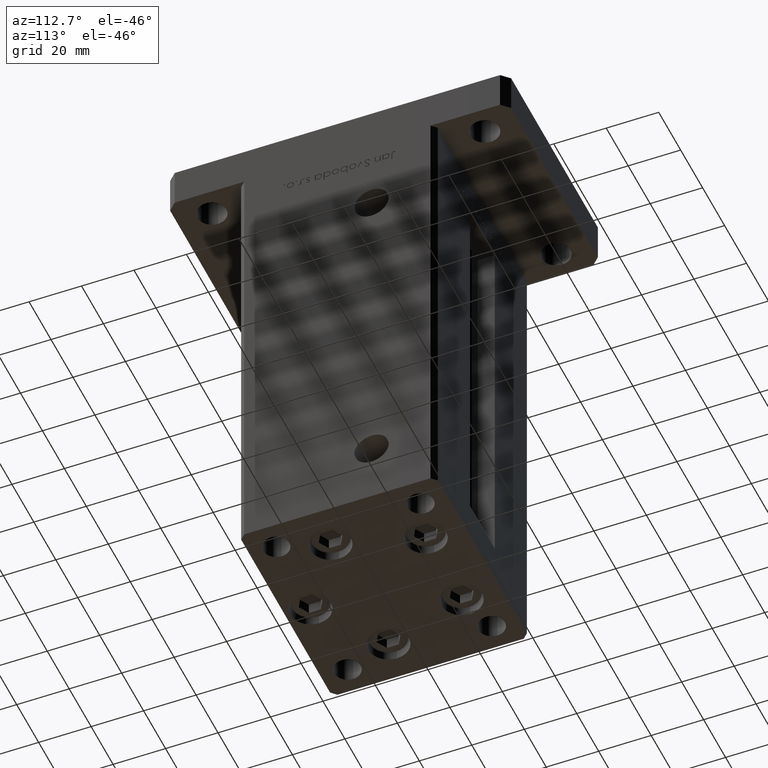
[diagram: clean part render]
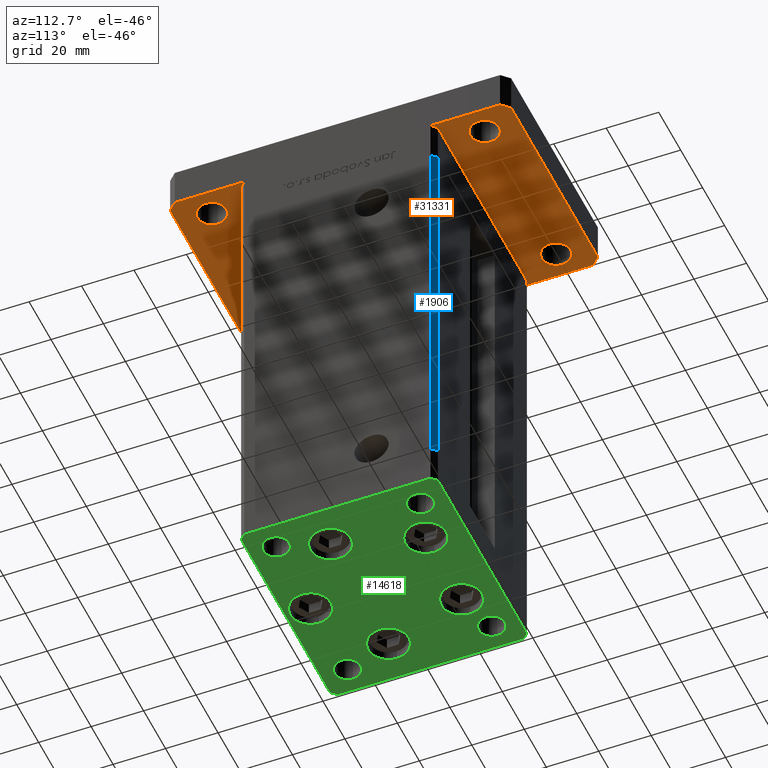
[diagram: same view with three faces highlighted in distinct colors, each labeled with its STEP entity id]
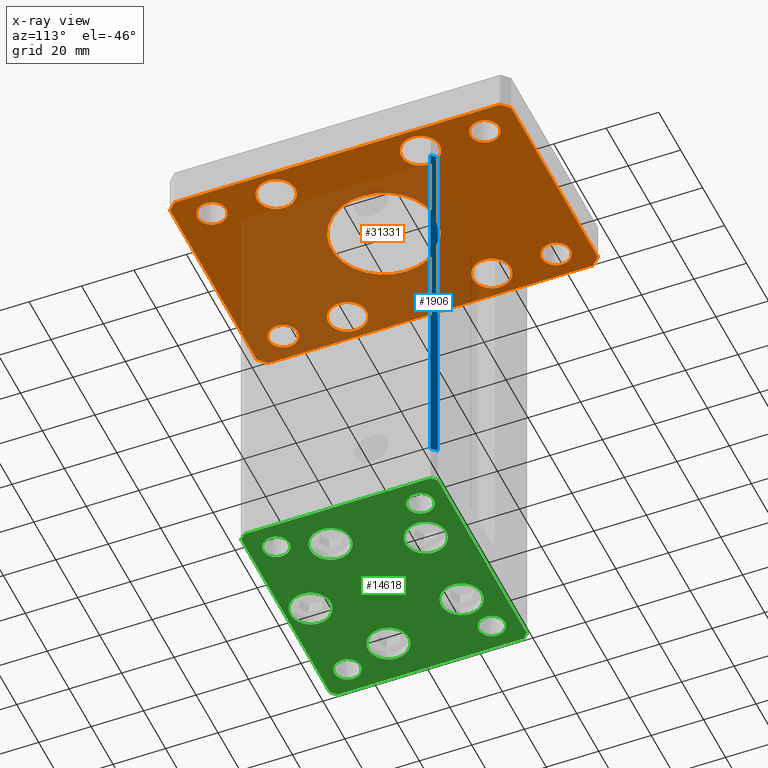
[diagram: x-ray of the same camera — body ghosted, the three highlighted faces saturated]
A machine part, auxiliary view with three faces highlighted in distinct colors.
The next image is the same camera in x-ray (body ghosted, the three faces saturated) — at least one of them is partly hidden behind the body in this view.
Their STEP definitions:

[orange] entity #31331 — the highlighted planar face has unit normal (0, 0, 1).
#93 = CIRCLE ( 'NONE', #39924, 5.499999999999998224 ) ;
#198 = DIRECTION ( 'NONE',  ( 0.000000000000000000, 0.000000000000000000, -1.000000000000000000 ) ) ;
#218 = CARTESIAN_POINT ( 'NONE',  ( 39.50000000000001421, -64.99999999999988631, 0.000000000000000000 ) ) ;
#240 = EDGE_CURVE ( 'NONE', #31435, #14441, #32843, .T. ) ;
#241 = LINE ( 'NONE', #21092, #24857 ) ;
#374 = CARTESIAN_POINT ( 'NONE',  ( 37.99999999999999289, 51.99999999999999289, 0.000000000000000000 ) ) ;
#631 = VECTOR ( 'NONE', #1691, 1000.000000000000000 ) ;
#804 = VERTEX_POINT ( 'NONE', #29867 ) ;
#842 = PLANE ( 'NONE',  #9855 ) ;
#1103 = FACE_BOUND ( 'NONE', #5461, .T. ) ;
#1182 = ORIENTED_EDGE ( 'NONE', *, *, #38232, .F. ) ;
#1403 = EDGE_CURVE ( 'NONE', #32871, #18408, #27687, .T. ) ;
#1691 = DIRECTION ( 'NONE',  ( 1.000000000000000000, 1.405345600791337191E-15, 0.000000000000000000 ) ) ;
#1705 = EDGE_CURVE ( 'NONE', #36257, #4007, #49326, .T. ) ;
#2014 = CARTESIAN_POINT ( 'NONE',  ( 42.50000000000000000, 62.00000000000000711, 0.000000000000000000 ) ) ;
#2139 = CARTESIAN_POINT ( 'NONE',  ( 39.75000000000000000, -27.50000000000000000, 0.000000000000000000 ) ) ;
#2170 = CARTESIAN_POINT ( 'NONE',  ( 26.99999999999998579, -52.00000000000000711, 0.000000000000000000 ) ) ;
#3467 = ORIENTED_EDGE ( 'NONE', *, *, #49041, .F. ) ;
#3607 = CARTESIAN_POINT ( 'NONE',  ( 27.00000000000001421, 51.99999999999999289, 0.000000000000000000 ) ) ;
#4007 = VERTEX_POINT ( 'NONE', #2139 ) ;
#4018 = VECTOR ( 'NONE', #50093, 1000.000000000000114 ) ;
#4034 = ORIENTED_EDGE ( 'NONE', *, *, #4381, .T. ) ;
#4108 = EDGE_CURVE ( 'NONE', #26864, #32811, #36397, .T. ) ;
#4168 = VECTOR ( 'NONE', #48023, 1000.000000000000000 ) ;
#4381 = EDGE_CURVE ( 'NONE', #4007, #36257, #20808, .T. ) ;
#4661 = CARTESIAN_POINT ( 'NONE',  ( -39.50000000000003553, 65.00000000000000000, 0.000000000000000000 ) ) ;
#5005 = ORIENTED_EDGE ( 'NONE', *, *, #38868, .T. ) ;
#5190 = FACE_BOUND ( 'NONE', #50930, .T. ) ;
#5352 = DIRECTION ( 'NONE',  ( 0.000000000000000000, 0.000000000000000000, 1.000000000000000000 ) ) ;
#5461 = EDGE_LOOP ( 'NONE', ( #27026, #48669 ) ) ;
#5507 = EDGE_CURVE ( 'NONE', #19607, #20496, #93, .T. ) ;
#5519 = CIRCLE ( 'NONE', #15036, 5.499999999999998224 ) ;
#5532 = ORIENTED_EDGE ( 'NONE', *, *, #44899, .F. ) ;
#5882 = DIRECTION ( 'NONE',  ( 1.000000000000000000, 0.000000000000000000, 0.000000000000000000 ) ) ;
#6146 = CARTESIAN_POINT ( 'NONE',  ( 32.49999999999997868, -52.00000000000000711, 0.000000000000000000 ) ) ;
#6578 = DIRECTION ( 'NONE',  ( 0.000000000000000000, 0.000000000000000000, 1.000000000000000000 ) ) ;
#6595 = DIRECTION ( 'NONE',  ( 0.000000000000000000, 0.000000000000000000, 1.000000000000000000 ) ) ;
#7430 = CIRCLE ( 'NONE', #32542, 5.499999999999994671 ) ;
#8009 = ORIENTED_EDGE ( 'NONE', *, *, #13323, .F. ) ;
#8164 = CARTESIAN_POINT ( 'NONE',  ( -32.50000000000000711, 27.50000000000000000, 0.000000000000000000 ) ) ;
#8278 = VECTOR ( 'NONE', #16309, 1000.000000000000000 ) ;
#8356 = DIRECTION ( 'NONE',  ( -1.000000000000000000, 0.000000000000000000, 0.000000000000000000 ) ) ;
#8482 = VERTEX_POINT ( 'NONE', #44010 ) ;
#8723 = FACE_BOUND ( 'NONE', #9268, .T. ) ;
#8820 = EDGE_CURVE ( 'NONE', #8482, #32773, #31352, .T. ) ;
#9268 = EDGE_LOOP ( 'NONE', ( #12874, #5005 ) ) ;
#9294 = CARTESIAN_POINT ( 'NONE',  ( -32.50000000000000711, 27.50000000000000000, 0.000000000000000000 ) ) ;
#9328 = DIRECTION ( 'NONE',  ( 1.000000000000000000, 0.000000000000000000, 0.000000000000000000 ) ) ;
#9855 = AXIS2_PLACEMENT_3D ( 'NONE', #45857, #21428, #41800 ) ;
#9949 = DIRECTION ( 'NONE',  ( 1.000000000000000000, 0.000000000000000000, 0.000000000000000000 ) ) ;
#10050 = CARTESIAN_POINT ( 'NONE',  ( -26.99999999999998579, -52.00000000000000711, 0.000000000000000000 ) ) ;
#10863 = ORIENTED_EDGE ( 'NONE', *, *, #41549, .F. ) ;
#11259 = CARTESIAN_POINT ( 'NONE',  ( 39.50000000000002842, 65.00000000000002842, 0.000000000000000000 ) ) ;
#11308 = DIRECTION ( 'NONE',  ( 0.000000000000000000, 0.000000000000000000, -1.000000000000000000 ) ) ;
#11342 = VERTEX_POINT ( 'NONE', #45221 ) ;
#12167 = DIRECTION ( 'NONE',  ( 0.000000000000000000, 0.000000000000000000, 1.000000000000000000 ) ) ;
#12250 = DIRECTION ( 'NONE',  ( -1.000000000000000000, -3.513364001978340512E-16, 0.000000000000000000 ) ) ;
#12576 = CIRCLE ( 'NONE', #17765, 7.249999999999999112 ) ;
#12874 = ORIENTED_EDGE ( 'NONE', *, *, #24143, .T. ) ;
#13321 = DIRECTION ( 'NONE',  ( -0.7071067811865466846, -0.7071067811865483499, 0.000000000000000000 ) ) ;
#13323 = EDGE_CURVE ( 'NONE', #30873, #25595, #32844, .T. ) ;
#13422 = CARTESIAN_POINT ( 'NONE',  ( -32.50000000000000000, 52.00000000000000000, 0.000000000000000000 ) ) ;
#13633 = CARTESIAN_POINT ( 'NONE',  ( 32.49999999999997868, -52.00000000000000711, 0.000000000000000000 ) ) ;
#13825 = EDGE_CURVE ( 'NONE', #44543, #43186, #39163, .T. ) ;
#14008 = DIRECTION ( 'NONE',  ( 0.000000000000000000, 0.000000000000000000, 1.000000000000000000 ) ) ;
#14330 = ORIENTED_EDGE ( 'NONE', *, *, #43327, .F. ) ;
#14441 = VERTEX_POINT ( 'NONE', #42627 ) ;
#14909 = AXIS2_PLACEMENT_3D ( 'NONE', #16466, #198, #8356 ) ;
#14946 = CARTESIAN_POINT ( 'NONE',  ( -42.49999999999999289, -62.00000000000001421, 0.000000000000000000 ) ) ;
#15036 = AXIS2_PLACEMENT_3D ( 'NONE', #6146, #5352, #5882 ) ;
#15042 = CIRCLE ( 'NONE', #50515, 5.499999999999991118 ) ;
#15215 = AXIS2_PLACEMENT_3D ( 'NONE', #41753, #24929, #42020 ) ;
#15992 = DIRECTION ( 'NONE',  ( 1.000000000000000000, 0.000000000000000000, 0.000000000000000000 ) ) ;
#16133 = AXIS2_PLACEMENT_3D ( 'NONE', #9294, #29613, #22263 ) ;
#16309 = DIRECTION ( 'NONE',  ( 0.000000000000000000, 1.000000000000000000, 0.000000000000000000 ) ) ;
#16466 = CARTESIAN_POINT ( 'NONE',  ( 0.000000000000000000, 0.000000000000000000, 0.000000000000000000 ) ) ;
#16679 = CARTESIAN_POINT ( 'NONE',  ( 32.50000000000000000, -27.50000000000000000, 0.000000000000000000 ) ) ;
#17125 = VERTEX_POINT ( 'NONE', #24560 ) ;
#17372 = CARTESIAN_POINT ( 'NONE',  ( 32.50000000000000000, 51.99999999999999289, 0.000000000000000000 ) ) ;
#17765 = AXIS2_PLACEMENT_3D ( 'NONE', #46456, #21756, #9328 ) ;
#18199 = DIRECTION ( 'NONE',  ( 0.000000000000000000, 0.000000000000000000, 1.000000000000000000 ) ) ;
#18408 = VERTEX_POINT ( 'NONE', #374 ) ;
#18663 = VECTOR ( 'NONE', #13321, 1000.000000000000000 ) ;
#19204 = VERTEX_POINT ( 'NONE', #2014 ) ;
#19607 = VERTEX_POINT ( 'NONE', #28777 ) ;
#19678 = CARTESIAN_POINT ( 'NONE',  ( 39.75000000000000000, 27.50000000000000000, 0.000000000000000000 ) ) ;
#20496 = VERTEX_POINT ( 'NONE', #2170 ) ;
#20539 = DIRECTION ( 'NONE',  ( 1.000000000000000000, 0.000000000000000000, 0.000000000000000000 ) ) ;
#20593 = VERTEX_POINT ( 'NONE', #10050 ) ;
#20808 = CIRCLE ( 'NONE', #34679, 7.249999999999999112 ) ;
#21092 = CARTESIAN_POINT ( 'NONE',  ( -42.50000000000002132, 62.00000000000000711, 0.000000000000000000 ) ) ;
#21428 = DIRECTION ( 'NONE',  ( 0.000000000000000000, 0.000000000000000000, 1.000000000000000000 ) ) ;
#21617 = LINE ( 'NONE', #30035, #8278 ) ;
#21688 = FACE_BOUND ( 'NONE', #21764, .T. ) ;
#21756 = DIRECTION ( 'NONE',  ( 0.000000000000000000, 0.000000000000000000, 1.000000000000000000 ) ) ;
#21764 = EDGE_LOOP ( 'NONE', ( #29459, #44432 ) ) ;
#22263 = DIRECTION ( 'NONE',  ( 1.000000000000000000, 0.000000000000000000, 0.000000000000000000 ) ) ;
#22402 = CARTESIAN_POINT ( 'NONE',  ( 0.000000000000000000, 0.000000000000000000, 0.000000000000000000 ) ) ;
#22558 = DIRECTION ( 'NONE',  ( 1.000000000000000000, 0.000000000000000000, 0.000000000000000000 ) ) ;
#23347 = AXIS2_PLACEMENT_3D ( 'NONE', #29877, #18199, #51000 ) ;
#23833 = ORIENTED_EDGE ( 'NONE', *, *, #34368, .F. ) ;
#23918 = CIRCLE ( 'NONE', #16133, 7.249999999999999112 ) ;
#23980 = ORIENTED_EDGE ( 'NONE', *, *, #25975, .T. ) ;
#24008 = CIRCLE ( 'NONE', #51710, 20.00000000000000000 ) ;
#24143 = EDGE_CURVE ( 'NONE', #29990, #804, #49841, .T. ) ;
#24560 = CARTESIAN_POINT ( 'NONE',  ( -42.49999999999999289, -62.00000000000001421, 0.000000000000000000 ) ) ;
#24857 = VECTOR ( 'NONE', #50372, 1000.000000000000000 ) ;
#24929 = DIRECTION ( 'NONE',  ( 0.000000000000000000, 0.000000000000000000, 1.000000000000000000 ) ) ;
#25595 = VERTEX_POINT ( 'NONE', #39760 ) ;
#25774 = FACE_OUTER_BOUND ( 'NONE', #41285, .T. ) ;
#25889 = AXIS2_PLACEMENT_3D ( 'NONE', #40279, #52473, #43255 ) ;
#25975 = EDGE_CURVE ( 'NONE', #43186, #44543, #23918, .T. ) ;
#26144 = VECTOR ( 'NONE', #12250, 1000.000000000000000 ) ;
#26523 = ORIENTED_EDGE ( 'NONE', *, *, #8820, .F. ) ;
#26864 = VERTEX_POINT ( 'NONE', #19678 ) ;
#27026 = ORIENTED_EDGE ( 'NONE', *, *, #45040, .T. ) ;
#27687 = CIRCLE ( 'NONE', #37207, 5.499999999999991118 ) ;
#27885 = DIRECTION ( 'NONE',  ( -0.7071067811865417996, 0.7071067811865532349, 0.000000000000000000 ) ) ;
#28503 = CARTESIAN_POINT ( 'NONE',  ( -37.99999999999997868, -52.00000000000000711, 0.000000000000000000 ) ) ;
#28777 = CARTESIAN_POINT ( 'NONE',  ( 37.99999999999997868, -52.00000000000000711, 0.000000000000000000 ) ) ;
#28890 = CIRCLE ( 'NONE', #31491, 7.249999999999999112 ) ;
#29052 = FACE_BOUND ( 'NONE', #51935, .T. ) ;
#29058 = EDGE_CURVE ( 'NONE', #18408, #32871, #15042, .T. ) ;
#29145 = CARTESIAN_POINT ( 'NONE',  ( 32.50000000000000000, 51.99999999999999289, 0.000000000000000000 ) ) ;
#29232 = AXIS2_PLACEMENT_3D ( 'NONE', #13422, #41639, #42694 ) ;
#29459 = ORIENTED_EDGE ( 'NONE', *, *, #1403, .T. ) ;
#29549 = DIRECTION ( 'NONE',  ( 1.000000000000000000, 0.000000000000000000, 0.000000000000000000 ) ) ;
#29576 = DIRECTION ( 'NONE',  ( 1.000000000000000000, 0.000000000000000000, 0.000000000000000000 ) ) ;
#29613 = DIRECTION ( 'NONE',  ( 0.000000000000000000, 0.000000000000000000, 1.000000000000000000 ) ) ;
#29867 = CARTESIAN_POINT ( 'NONE',  ( -25.25000000000000000, -27.50000000000000000, 0.000000000000000000 ) ) ;
#29877 = CARTESIAN_POINT ( 'NONE',  ( 32.50000000000000000, -27.50000000000000000, 0.000000000000000000 ) ) ;
#29990 = VERTEX_POINT ( 'NONE', #36707 ) ;
#30035 = CARTESIAN_POINT ( 'NONE',  ( 42.50000000000000000, -61.99999999999988631, 0.000000000000000000 ) ) ;
#30616 = ORIENTED_EDGE ( 'NONE', *, *, #1705, .T. ) ;
#30826 = ORIENTED_EDGE ( 'NONE', *, *, #5507, .T. ) ;
#30873 = VERTEX_POINT ( 'NONE', #11259 ) ;
#31331 = ADVANCED_FACE ( 'NONE', ( #5190, #25774, #49655, #21688, #1103, #8723, #45591, #29052, #49913, #37718 ), #842, .F. ) ;
#31352 = CIRCLE ( 'NONE', #14909, 20.00000000000000000 ) ;
#31435 = VERTEX_POINT ( 'NONE', #34712 ) ;
#31491 = AXIS2_PLACEMENT_3D ( 'NONE', #51139, #14008, #9949 ) ;
#31729 = CARTESIAN_POINT ( 'NONE',  ( -32.49999999999997868, -52.00000000000000711, 0.000000000000000000 ) ) ;
#32542 = AXIS2_PLACEMENT_3D ( 'NONE', #31729, #36599, #15992 ) ;
#32773 = VERTEX_POINT ( 'NONE', #52140 ) ;
#32811 = VERTEX_POINT ( 'NONE', #41291 ) ;
#32843 = CIRCLE ( 'NONE', #25889, 5.499999999999994671 ) ;
#32844 = LINE ( 'NONE', #49380, #26144 ) ;
#32871 = VERTEX_POINT ( 'NONE', #3607 ) ;
#32947 = DIRECTION ( 'NONE',  ( 0.000000000000000000, 0.000000000000000000, 1.000000000000000000 ) ) ;
#33030 = LINE ( 'NONE', #218, #4018 ) ;
#33796 = CARTESIAN_POINT ( 'NONE',  ( 42.50000000000000000, -61.99999999999988631, 0.000000000000000000 ) ) ;
#34154 = CARTESIAN_POINT ( 'NONE',  ( -25.25000000000000711, 27.50000000000000000, 0.000000000000000000 ) ) ;
#34368 = EDGE_CURVE ( 'NONE', #19204, #30873, #36031, .T. ) ;
#34562 = EDGE_CURVE ( 'NONE', #20496, #19607, #5519, .T. ) ;
#34675 = EDGE_CURVE ( 'NONE', #32811, #26864, #28890, .T. ) ;
#34679 = AXIS2_PLACEMENT_3D ( 'NONE', #16679, #50285, #42434 ) ;
#34712 = CARTESIAN_POINT ( 'NONE',  ( -27.00000000000000711, 52.00000000000000000, 0.000000000000000000 ) ) ;
#35462 = VERTEX_POINT ( 'NONE', #45800 ) ;
#36031 = LINE ( 'NONE', #36822, #40167 ) ;
#36166 = AXIS2_PLACEMENT_3D ( 'NONE', #40474, #6595, #36660 ) ;
#36257 = VERTEX_POINT ( 'NONE', #37665 ) ;
#36300 = CARTESIAN_POINT ( 'NONE',  ( 32.50000000000000000, 27.50000000000000000, 0.000000000000000000 ) ) ;
#36397 = CIRCLE ( 'NONE', #38130, 7.249999999999999112 ) ;
#36584 = AXIS2_PLACEMENT_3D ( 'NONE', #8164, #42037, #29549 ) ;
#36599 = DIRECTION ( 'NONE',  ( 0.000000000000000000, 0.000000000000000000, 1.000000000000000000 ) ) ;
#36660 = DIRECTION ( 'NONE',  ( 1.000000000000000000, 0.000000000000000000, 0.000000000000000000 ) ) ;
#36707 = CARTESIAN_POINT ( 'NONE',  ( -39.75000000000000000, -27.50000000000000000, 0.000000000000000000 ) ) ;
#36822 = CARTESIAN_POINT ( 'NONE',  ( 42.50000000000000000, 62.00000000000000711, 0.000000000000000000 ) ) ;
#37207 = AXIS2_PLACEMENT_3D ( 'NONE', #29145, #32947, #40826 ) ;
#37609 = ORIENTED_EDGE ( 'NONE', *, *, #39453, .T. ) ;
#37665 = CARTESIAN_POINT ( 'NONE',  ( 25.25000000000000000, -27.50000000000000000, 0.000000000000000000 ) ) ;
#37710 = ORIENTED_EDGE ( 'NONE', *, *, #4108, .T. ) ;
#37718 = FACE_BOUND ( 'NONE', #48826, .T. ) ;
#37949 = EDGE_LOOP ( 'NONE', ( #37609, #39300 ) ) ;
#38130 = AXIS2_PLACEMENT_3D ( 'NONE', #36300, #12167, #20539 ) ;
#38232 = EDGE_CURVE ( 'NONE', #53463, #19204, #21617, .T. ) ;
#38306 = CARTESIAN_POINT ( 'NONE',  ( -39.50000000000000000, -65.00000000000000000, 0.000000000000000000 ) ) ;
#38781 = ORIENTED_EDGE ( 'NONE', *, *, #13825, .T. ) ;
#38868 = EDGE_CURVE ( 'NONE', #804, #29990, #12576, .T. ) ;
#39163 = CIRCLE ( 'NONE', #36584, 7.249999999999999112 ) ;
#39289 = EDGE_CURVE ( 'NONE', #25595, #51192, #50443, .T. ) ;
#39300 = ORIENTED_EDGE ( 'NONE', *, *, #50241, .T. ) ;
#39453 = EDGE_CURVE ( 'NONE', #41283, #20593, #7430, .T. ) ;
#39760 = CARTESIAN_POINT ( 'NONE',  ( -39.50000000000003553, 65.00000000000000000, 0.000000000000000000 ) ) ;
#39924 = AXIS2_PLACEMENT_3D ( 'NONE', #13633, #6578, #22558 ) ;
#40088 = ORIENTED_EDGE ( 'NONE', *, *, #34562, .T. ) ;
#40167 = VECTOR ( 'NONE', #27885, 1000.000000000000000 ) ;
#40279 = CARTESIAN_POINT ( 'NONE',  ( -32.50000000000000000, 52.00000000000000000, 0.000000000000000000 ) ) ;
#40474 = CARTESIAN_POINT ( 'NONE',  ( -32.49999999999997868, -52.00000000000000711, 0.000000000000000000 ) ) ;
#40826 = DIRECTION ( 'NONE',  ( 1.000000000000000000, 0.000000000000000000, 0.000000000000000000 ) ) ;
#40933 = CARTESIAN_POINT ( 'NONE',  ( -39.75000000000000711, 27.50000000000000000, 0.000000000000000000 ) ) ;
#41283 = VERTEX_POINT ( 'NONE', #28503 ) ;
#41285 = EDGE_LOOP ( 'NONE', ( #3467, #46988, #14330, #45849, #8009, #23833, #1182, #10863 ) ) ;
#41291 = CARTESIAN_POINT ( 'NONE',  ( 25.25000000000000000, 27.50000000000000000, 0.000000000000000000 ) ) ;
#41549 = EDGE_CURVE ( 'NONE', #35462, #53463, #33030, .T. ) ;
#41639 = DIRECTION ( 'NONE',  ( 0.000000000000000000, 0.000000000000000000, 1.000000000000000000 ) ) ;
#41753 = CARTESIAN_POINT ( 'NONE',  ( -32.50000000000000000, -27.50000000000000000, 0.000000000000000000 ) ) ;
#41796 = DIRECTION ( 'NONE',  ( 0.000000000000000000, 0.000000000000000000, 1.000000000000000000 ) ) ;
#41800 = DIRECTION ( 'NONE',  ( 1.000000000000000000, 0.000000000000000000, -0.000000000000000000 ) ) ;
#41927 = EDGE_LOOP ( 'NONE', ( #23980, #38781 ) ) ;
#42020 = DIRECTION ( 'NONE',  ( 1.000000000000000000, 0.000000000000000000, 0.000000000000000000 ) ) ;
#42037 = DIRECTION ( 'NONE',  ( 0.000000000000000000, 0.000000000000000000, 1.000000000000000000 ) ) ;
#42237 = CIRCLE ( 'NONE', #36166, 5.499999999999994671 ) ;
#42434 = DIRECTION ( 'NONE',  ( 1.000000000000000000, 0.000000000000000000, 0.000000000000000000 ) ) ;
#42627 = CARTESIAN_POINT ( 'NONE',  ( -38.00000000000000000, 52.00000000000000000, 0.000000000000000000 ) ) ;
#42694 = DIRECTION ( 'NONE',  ( 1.000000000000000000, 0.000000000000000000, 0.000000000000000000 ) ) ;
#42931 = CARTESIAN_POINT ( 'NONE',  ( -42.50000000000002132, 62.00000000000000711, 0.000000000000000000 ) ) ;
#43186 = VERTEX_POINT ( 'NONE', #40933 ) ;
#43255 = DIRECTION ( 'NONE',  ( 1.000000000000000000, 0.000000000000000000, 0.000000000000000000 ) ) ;
#43327 = EDGE_CURVE ( 'NONE', #51192, #17125, #241, .T. ) ;
#43685 = LINE ( 'NONE', #14946, #4168 ) ;
#43943 = CIRCLE ( 'NONE', #29232, 5.499999999999994671 ) ;
#44010 = CARTESIAN_POINT ( 'NONE',  ( -20.00000000000000000, 0.000000000000000000, 0.000000000000000000 ) ) ;
#44432 = ORIENTED_EDGE ( 'NONE', *, *, #29058, .T. ) ;
#44543 = VERTEX_POINT ( 'NONE', #34154 ) ;
#44899 = EDGE_CURVE ( 'NONE', #32773, #8482, #24008, .T. ) ;
#45040 = EDGE_CURVE ( 'NONE', #14441, #31435, #43943, .T. ) ;
#45221 = CARTESIAN_POINT ( 'NONE',  ( -39.50000000000000000, -65.00000000000000000, 0.000000000000000000 ) ) ;
#45591 = FACE_BOUND ( 'NONE', #46069, .T. ) ;
#45800 = CARTESIAN_POINT ( 'NONE',  ( 39.50000000000001421, -64.99999999999988631, 0.000000000000000000 ) ) ;
#45849 = ORIENTED_EDGE ( 'NONE', *, *, #39289, .F. ) ;
#45857 = CARTESIAN_POINT ( 'NONE',  ( 0.000000000000000000, 0.000000000000000000, 0.000000000000000000 ) ) ;
#46069 = EDGE_LOOP ( 'NONE', ( #30616, #4034 ) ) ;
#46243 = EDGE_CURVE ( 'NONE', #17125, #11342, #43685, .T. ) ;
#46456 = CARTESIAN_POINT ( 'NONE',  ( -32.50000000000000000, -27.50000000000000000, 0.000000000000000000 ) ) ;
#46988 = ORIENTED_EDGE ( 'NONE', *, *, #46243, .F. ) ;
#48023 = DIRECTION ( 'NONE',  ( 0.7071067811865483499, -0.7071067811865466846, 0.000000000000000000 ) ) ;
#48669 = ORIENTED_EDGE ( 'NONE', *, *, #240, .T. ) ;
#48826 = EDGE_LOOP ( 'NONE', ( #40088, #30826 ) ) ;
#49041 = EDGE_CURVE ( 'NONE', #11342, #35462, #51037, .T. ) ;
#49326 = CIRCLE ( 'NONE', #23347, 7.249999999999999112 ) ;
#49380 = CARTESIAN_POINT ( 'NONE',  ( 39.50000000000002842, 65.00000000000002842, 0.000000000000000000 ) ) ;
#49655 = FACE_BOUND ( 'NONE', #37949, .T. ) ;
#49841 = CIRCLE ( 'NONE', #15215, 7.249999999999999112 ) ;
#49913 = FACE_BOUND ( 'NONE', #41927, .T. ) ;
#50093 = DIRECTION ( 'NONE',  ( 0.7071067811865459074, 0.7071067811865491270, 0.000000000000000000 ) ) ;
#50241 = EDGE_CURVE ( 'NONE', #20593, #41283, #42237, .T. ) ;
#50285 = DIRECTION ( 'NONE',  ( 0.000000000000000000, 0.000000000000000000, 1.000000000000000000 ) ) ;
#50372 = DIRECTION ( 'NONE',  ( 2.238352872228137677E-16, -1.000000000000000000, 0.000000000000000000 ) ) ;
#50443 = LINE ( 'NONE', #4661, #18663 ) ;
#50515 = AXIS2_PLACEMENT_3D ( 'NONE', #17372, #41796, #29576 ) ;
#50930 = EDGE_LOOP ( 'NONE', ( #26523, #5532 ) ) ;
#51000 = DIRECTION ( 'NONE',  ( 1.000000000000000000, 0.000000000000000000, 0.000000000000000000 ) ) ;
#51037 = LINE ( 'NONE', #38306, #631 ) ;
#51139 = CARTESIAN_POINT ( 'NONE',  ( 32.50000000000000000, 27.50000000000000000, 0.000000000000000000 ) ) ;
#51192 = VERTEX_POINT ( 'NONE', #42931 ) ;
#51710 = AXIS2_PLACEMENT_3D ( 'NONE', #22402, #11308, #52229 ) ;
#51935 = EDGE_LOOP ( 'NONE', ( #53531, #37710 ) ) ;
#52140 = CARTESIAN_POINT ( 'NONE',  ( 20.00000000000000000, 2.449293598294706513E-15, 0.000000000000000000 ) ) ;
#52229 = DIRECTION ( 'NONE',  ( -1.000000000000000000, 0.000000000000000000, 0.000000000000000000 ) ) ;
#52473 = DIRECTION ( 'NONE',  ( 0.000000000000000000, 0.000000000000000000, 1.000000000000000000 ) ) ;
#53463 = VERTEX_POINT ( 'NONE', #33796 ) ;
#53531 = ORIENTED_EDGE ( 'NONE', *, *, #34675, .T. ) ;

[blue] entity #1906 — the highlighted planar face has unit normal (0.7071, 0.7071, 0).
#1906 = ADVANCED_FACE ( 'NONE', ( #7632 ), #3821, .T. ) ;
#2898 = DIRECTION ( 'NONE',  ( -0.000000000000000000, -0.000000000000000000, -1.000000000000000000 ) ) ;
#2947 = VERTEX_POINT ( 'NONE', #5470 ) ;
#3172 = EDGE_CURVE ( 'NONE', #35626, #8617, #49617, .T. ) ;
#3821 = PLANE ( 'NONE',  #4322 ) ;
#4090 = DIRECTION ( 'NONE',  ( -0.7071067811865500152, 0.7071067811865451302, 0.000000000000000000 ) ) ;
#4322 = AXIS2_PLACEMENT_3D ( 'NONE', #20336, #20860, #4090 ) ;
#5470 = CARTESIAN_POINT ( 'NONE',  ( 42.50000000000000711, 35.50000000000001421, 0.000000000000000000 ) ) ;
#7473 = EDGE_LOOP ( 'NONE', ( #44277, #47290, #47809, #34105 ) ) ;
#7632 = FACE_OUTER_BOUND ( 'NONE', #7473, .T. ) ;
#8617 = VERTEX_POINT ( 'NONE', #41290 ) ;
#11839 = LINE ( 'NONE', #20476, #13131 ) ;
#11928 = DIRECTION ( 'NONE',  ( -0.000000000000000000, -0.000000000000000000, -1.000000000000000000 ) ) ;
#12567 = EDGE_CURVE ( 'NONE', #35626, #40863, #11839, .T. ) ;
#13131 = VECTOR ( 'NONE', #2898, 1000.000000000000000 ) ;
#15448 = LINE ( 'NONE', #36324, #48239 ) ;
#20336 = CARTESIAN_POINT ( 'NONE',  ( 40.50000000000000000, 37.50000000000000711, 148.5000000000000000 ) ) ;
#20476 = CARTESIAN_POINT ( 'NONE',  ( 40.50000000000000000, 37.50000000000000711, 148.5000000000000000 ) ) ;
#20857 = CARTESIAN_POINT ( 'NONE',  ( 40.50000000000000000, 37.50000000000000711, 148.5000000000000000 ) ) ;
#20860 = DIRECTION ( 'NONE',  ( 0.7071067811865451302, 0.7071067811865500152, -0.000000000000000000 ) ) ;
#25693 = EDGE_CURVE ( 'NONE', #40863, #2947, #53544, .T. ) ;
#30303 = VECTOR ( 'NONE', #53147, 1000.000000000000114 ) ;
#31581 = CARTESIAN_POINT ( 'NONE',  ( 40.50000000000000000, 37.50000000000000711, 0.000000000000000000 ) ) ;
#33443 = VECTOR ( 'NONE', #49755, 1000.000000000000114 ) ;
#34105 = ORIENTED_EDGE ( 'NONE', *, *, #43122, .T. ) ;
#35626 = VERTEX_POINT ( 'NONE', #42525 ) ;
#36324 = CARTESIAN_POINT ( 'NONE',  ( 42.50000000000000711, 35.50000000000001421, 148.5000000000000000 ) ) ;
#40833 = CARTESIAN_POINT ( 'NONE',  ( 40.50000000000000000, 37.50000000000000711, 0.000000000000000000 ) ) ;
#40863 = VERTEX_POINT ( 'NONE', #31581 ) ;
#41290 = CARTESIAN_POINT ( 'NONE',  ( 42.50000000000000711, 35.50000000000001421, 148.5000000000000000 ) ) ;
#42525 = CARTESIAN_POINT ( 'NONE',  ( 40.50000000000000000, 37.50000000000000711, 148.5000000000000000 ) ) ;
#43122 = EDGE_CURVE ( 'NONE', #8617, #2947, #15448, .T. ) ;
#44277 = ORIENTED_EDGE ( 'NONE', *, *, #25693, .F. ) ;
#47290 = ORIENTED_EDGE ( 'NONE', *, *, #12567, .F. ) ;
#47809 = ORIENTED_EDGE ( 'NONE', *, *, #3172, .T. ) ;
#48239 = VECTOR ( 'NONE', #11928, 1000.000000000000000 ) ;
#49617 = LINE ( 'NONE', #20857, #30303 ) ;
#49755 = DIRECTION ( 'NONE',  ( 0.7071067811865500152, -0.7071067811865451302, 0.000000000000000000 ) ) ;
#53147 = DIRECTION ( 'NONE',  ( 0.7071067811865500152, -0.7071067811865451302, 0.000000000000000000 ) ) ;
#53544 = LINE ( 'NONE', #40833, #33443 ) ;

[green] entity #14618 — the highlighted planar face has unit normal (0, 0, -1).
#10 = EDGE_LOOP ( 'NONE', ( #50257, #27188 ) ) ;
#522 = CIRCLE ( 'NONE', #34293, 7.750000000000000000 ) ;
#950 = CARTESIAN_POINT ( 'NONE',  ( -16.32291334290543006, 22.74999999999999645, 0.000000000000000000 ) ) ;
#988 = DIRECTION ( 'NONE',  ( -0.7071067811865463515, -0.7071067811865487940, 0.000000000000000000 ) ) ;
#1025 = CARTESIAN_POINT ( 'NONE',  ( 42.50000000000000711, -35.50000000000000000, 0.000000000000000000 ) ) ;
#1180 = EDGE_LOOP ( 'NONE', ( #18382, #14537 ) ) ;
#1250 = CARTESIAN_POINT ( 'NONE',  ( -40.50000000000000711, 37.49999999999997868, 0.000000000000000000 ) ) ;
#1370 = EDGE_CURVE ( 'NONE', #20326, #17504, #39812, .T. ) ;
#1374 = CARTESIAN_POINT ( 'NONE',  ( -42.50000000000000711, 35.49999999999997158, 0.000000000000000000 ) ) ;
#1981 = CARTESIAN_POINT ( 'NONE',  ( -24.07291334290543006, 22.74999999999999645, 0.000000000000000000 ) ) ;
#2017 = LINE ( 'NONE', #44309, #46558 ) ;
#2301 = CARTESIAN_POINT ( 'NONE',  ( 27.50000000000000355, -27.49999999999999645, 0.000000000000000000 ) ) ;
#2769 = AXIS2_PLACEMENT_3D ( 'NONE', #42210, #16991, #20251 ) ;
#2843 = CARTESIAN_POINT ( 'NONE',  ( -37.50000000000000711, -27.49999999999999645, 0.000000000000000000 ) ) ;
#3280 = CIRCLE ( 'NONE', #40515, 5.000000000000000888 ) ;
#3350 = VERTEX_POINT ( 'NONE', #12158 ) ;
#3618 = CIRCLE ( 'NONE', #10540, 4.999999999999997335 ) ;
#3720 = DIRECTION ( 'NONE',  ( 1.000000000000000000, 0.000000000000000000, 0.000000000000000000 ) ) ;
#3844 = CARTESIAN_POINT ( 'NONE',  ( 3.429011037612589276E-15, -28.00000000000000000, 0.000000000000000000 ) ) ;
#3975 = EDGE_CURVE ( 'NONE', #13654, #28781, #23285, .T. ) ;
#3985 = CARTESIAN_POINT ( 'NONE',  ( -40.49999999999999289, -37.50000000000002132, 0.000000000000000000 ) ) ;
#3994 = DIRECTION ( 'NONE',  ( 0.000000000000000000, -0.000000000000000000, -1.000000000000000000 ) ) ;
#4058 = CIRCLE ( 'NONE', #38668, 5.000000000000000888 ) ;
#4160 = CIRCLE ( 'NONE', #40507, 7.750000000000003553 ) ;
#4518 = CARTESIAN_POINT ( 'NONE',  ( 16.32291334290542295, 22.75000000000000000, 0.000000000000000000 ) ) ;
#4888 = AXIS2_PLACEMENT_3D ( 'NONE', #34468, #50997, #50206 ) ;
#5106 = CARTESIAN_POINT ( 'NONE',  ( -42.50000000000000000, -35.50000000000000711, 0.000000000000000000 ) ) ;
#5153 = CARTESIAN_POINT ( 'NONE',  ( -42.50000000000000000, -35.50000000000000711, 0.000000000000000000 ) ) ;
#5797 = ORIENTED_EDGE ( 'NONE', *, *, #7918, .T. ) ;
#6369 = VECTOR ( 'NONE', #42027, 1000.000000000000000 ) ;
#6498 = FACE_BOUND ( 'NONE', #48714, .T. ) ;
#6655 = EDGE_CURVE ( 'NONE', #30761, #53140, #3618, .T. ) ;
#6907 = CARTESIAN_POINT ( 'NONE',  ( 37.50000000000000000, 27.49999999999999645, 0.000000000000000000 ) ) ;
#7918 = EDGE_CURVE ( 'NONE', #37796, #52036, #8835, .T. ) ;
#8418 = VERTEX_POINT ( 'NONE', #1981 ) ;
#8554 = DIRECTION ( 'NONE',  ( -0.000000000000000000, 0.000000000000000000, 1.000000000000000000 ) ) ;
#8567 = EDGE_CURVE ( 'NONE', #32726, #23388, #33946, .T. ) ;
#8835 = CIRCLE ( 'NONE', #2769, 5.000000000000000888 ) ;
#9493 = CARTESIAN_POINT ( 'NONE',  ( 0.000000000000000000, 0.000000000000000000, 0.000000000000000000 ) ) ;
#10167 = CARTESIAN_POINT ( 'NONE',  ( -18.64865316429776954, -9.333333333333335702, 0.000000000000000000 ) ) ;
#10540 = AXIS2_PLACEMENT_3D ( 'NONE', #52596, #44729, #23854 ) ;
#10562 = PLANE ( 'NONE',  #27042 ) ;
#10788 = DIRECTION ( 'NONE',  ( 0.000000000000000000, -0.000000000000000000, -1.000000000000000000 ) ) ;
#10952 = ORIENTED_EDGE ( 'NONE', *, *, #45052, .T. ) ;
#11120 = ORIENTED_EDGE ( 'NONE', *, *, #6655, .T. ) ;
#11355 = DIRECTION ( 'NONE',  ( -0.000000000000000000, 0.000000000000000000, 1.000000000000000000 ) ) ;
#11813 = VERTEX_POINT ( 'NONE', #35085 ) ;
#11821 = CARTESIAN_POINT ( 'NONE',  ( -32.50000000000000000, 27.50000000000000355, 0.000000000000000000 ) ) ;
#11857 = ORIENTED_EDGE ( 'NONE', *, *, #48953, .T. ) ;
#11880 = CARTESIAN_POINT ( 'NONE',  ( 26.39865316429776954, -9.333333333333330373, 0.000000000000000000 ) ) ;
#12019 = CARTESIAN_POINT ( 'NONE',  ( 26.39865316429776954, -9.333333333333330373, 0.000000000000000000 ) ) ;
#12158 = CARTESIAN_POINT ( 'NONE',  ( 8.572913342905422951, 22.75000000000000000, 0.000000000000000000 ) ) ;
#12185 = CARTESIAN_POINT ( 'NONE',  ( 16.32291334290542295, 22.75000000000000000, 0.000000000000000000 ) ) ;
#12398 = ORIENTED_EDGE ( 'NONE', *, *, #45958, .T. ) ;
#12708 = DIRECTION ( 'NONE',  ( 1.000000000000000000, 0.000000000000000000, 0.000000000000000000 ) ) ;
#12789 = CIRCLE ( 'NONE', #18851, 4.999999999999997335 ) ;
#12994 = EDGE_LOOP ( 'NONE', ( #37372, #26656 ) ) ;
#13223 = ORIENTED_EDGE ( 'NONE', *, *, #41610, .T. ) ;
#13654 = VERTEX_POINT ( 'NONE', #39357 ) ;
#14082 = FACE_BOUND ( 'NONE', #34262, .T. ) ;
#14210 = EDGE_LOOP ( 'NONE', ( #22007, #5797 ) ) ;
#14243 = EDGE_CURVE ( 'NONE', #44932, #13654, #32898, .T. ) ;
#14537 = ORIENTED_EDGE ( 'NONE', *, *, #50282, .F. ) ;
#14618 = ADVANCED_FACE ( 'NONE', ( #43627, #43360, #46624, #6498, #14082, #42559, #39295, #47423, #38757, #30620 ), #10562, .T. ) ;
#14911 = CARTESIAN_POINT ( 'NONE',  ( 7.750000000000003553, -28.00000000000000000, 0.000000000000000000 ) ) ;
#15027 = CARTESIAN_POINT ( 'NONE',  ( 3.429011037612589276E-15, -28.00000000000000000, 0.000000000000000000 ) ) ;
#15255 = AXIS2_PLACEMENT_3D ( 'NONE', #48487, #11355, #27870 ) ;
#15850 = CIRCLE ( 'NONE', #42708, 7.750000000000000000 ) ;
#15856 = LINE ( 'NONE', #28862, #35347 ) ;
#15890 = CARTESIAN_POINT ( 'NONE',  ( 42.49999999999992895, 35.50000000000000000, 0.000000000000000000 ) ) ;
#16087 = DIRECTION ( 'NONE',  ( -0.7071067811865474617, 0.7071067811865474617, 0.000000000000000000 ) ) ;
#16232 = DIRECTION ( 'NONE',  ( 0.000000000000000000, -0.000000000000000000, -1.000000000000000000 ) ) ;
#16694 = DIRECTION ( 'NONE',  ( 1.000000000000000000, 0.000000000000000000, 0.000000000000000000 ) ) ;
#16991 = DIRECTION ( 'NONE',  ( 0.000000000000000000, -0.000000000000000000, -1.000000000000000000 ) ) ;
#17006 = VERTEX_POINT ( 'NONE', #5106 ) ;
#17504 = VERTEX_POINT ( 'NONE', #38766 ) ;
#17790 = EDGE_CURVE ( 'NONE', #17923, #3350, #37535, .T. ) ;
#17884 = VECTOR ( 'NONE', #19960, 1000.000000000000000 ) ;
#17923 = VERTEX_POINT ( 'NONE', #19427 ) ;
#18010 = DIRECTION ( 'NONE',  ( 0.000000000000000000, -0.000000000000000000, -1.000000000000000000 ) ) ;
#18171 = CARTESIAN_POINT ( 'NONE',  ( 27.50000000000000355, 27.49999999999999645, 0.000000000000000000 ) ) ;
#18253 = VERTEX_POINT ( 'NONE', #10167 ) ;
#18382 = ORIENTED_EDGE ( 'NONE', *, *, #24397, .F. ) ;
#18494 = AXIS2_PLACEMENT_3D ( 'NONE', #12185, #16232, #12708 ) ;
#18662 = VERTEX_POINT ( 'NONE', #42254 ) ;
#18851 = AXIS2_PLACEMENT_3D ( 'NONE', #41277, #41804, #37450 ) ;
#18926 = EDGE_LOOP ( 'NONE', ( #37515, #10952 ) ) ;
#18951 = CARTESIAN_POINT ( 'NONE',  ( 40.49999999999991473, 37.50000000000000711, 0.000000000000000000 ) ) ;
#19294 = DIRECTION ( 'NONE',  ( 1.000000000000000000, 0.000000000000000000, 0.000000000000000000 ) ) ;
#19391 = VERTEX_POINT ( 'NONE', #25033 ) ;
#19427 = CARTESIAN_POINT ( 'NONE',  ( 24.07291334290542650, 22.75000000000000000, 0.000000000000000000 ) ) ;
#19704 = AXIS2_PLACEMENT_3D ( 'NONE', #950, #18010, #50287 ) ;
#19748 = ORIENTED_EDGE ( 'NONE', *, *, #25233, .T. ) ;
#19960 = DIRECTION ( 'NONE',  ( 1.000000000000000000, 1.713307136767217096E-16, 0.000000000000000000 ) ) ;
#20251 = DIRECTION ( 'NONE',  ( 1.000000000000000000, 0.000000000000000000, 0.000000000000000000 ) ) ;
#20287 = AXIS2_PLACEMENT_3D ( 'NONE', #11880, #49800, #53595 ) ;
#20326 = VERTEX_POINT ( 'NONE', #52396 ) ;
#20563 = VERTEX_POINT ( 'NONE', #18171 ) ;
#21021 = VERTEX_POINT ( 'NONE', #49002 ) ;
#21214 = AXIS2_PLACEMENT_3D ( 'NONE', #27584, #10788, #27848 ) ;
#21311 = LINE ( 'NONE', #1250, #43553 ) ;
#22007 = ORIENTED_EDGE ( 'NONE', *, *, #46611, .T. ) ;
#22055 = CIRCLE ( 'NONE', #21214, 7.750000000000000000 ) ;
#22190 = CIRCLE ( 'NONE', #4888, 7.750000000000000000 ) ;
#23166 = CARTESIAN_POINT ( 'NONE',  ( 32.50000000000000000, -27.49999999999999645, 0.000000000000000000 ) ) ;
#23218 = EDGE_LOOP ( 'NONE', ( #11857, #11120 ) ) ;
#23285 = LINE ( 'NONE', #18951, #52840 ) ;
#23388 = VERTEX_POINT ( 'NONE', #27490 ) ;
#23622 = EDGE_CURVE ( 'NONE', #8418, #11813, #51538, .T. ) ;
#23854 = DIRECTION ( 'NONE',  ( 1.000000000000000000, 0.000000000000000000, 0.000000000000000000 ) ) ;
#24037 = CARTESIAN_POINT ( 'NONE',  ( -32.50000000000000000, 27.50000000000000355, 0.000000000000000000 ) ) ;
#24397 = EDGE_CURVE ( 'NONE', #41734, #20563, #37733, .T. ) ;
#24755 = CARTESIAN_POINT ( 'NONE',  ( 42.49999999999992895, 35.50000000000000000, 0.000000000000000000 ) ) ;
#25033 = CARTESIAN_POINT ( 'NONE',  ( 42.50000000000000711, -35.50000000000000000, 0.000000000000000000 ) ) ;
#25233 = EDGE_CURVE ( 'NONE', #21021, #18253, #22190, .T. ) ;
#25456 = DIRECTION ( 'NONE',  ( 1.000000000000000000, 0.000000000000000000, 0.000000000000000000 ) ) ;
#26215 = DIRECTION ( 'NONE',  ( -1.172770800660376741E-15, 1.000000000000000000, 0.000000000000000000 ) ) ;
#26494 = ORIENTED_EDGE ( 'NONE', *, *, #28147, .T. ) ;
#26656 = ORIENTED_EDGE ( 'NONE', *, *, #1370, .F. ) ;
#27042 = AXIS2_PLACEMENT_3D ( 'NONE', #9493, #30889, #27077 ) ;
#27077 = DIRECTION ( 'NONE',  ( 1.000000000000000000, 0.000000000000000000, 0.000000000000000000 ) ) ;
#27188 = ORIENTED_EDGE ( 'NONE', *, *, #17790, .T. ) ;
#27490 = CARTESIAN_POINT ( 'NONE',  ( 34.14865316429776954, -9.333333333333328596, 0.000000000000000000 ) ) ;
#27584 = CARTESIAN_POINT ( 'NONE',  ( -26.39865316429776954, -9.333333333333337478, 0.000000000000000000 ) ) ;
#27848 = DIRECTION ( 'NONE',  ( 1.000000000000000000, 0.000000000000000000, 0.000000000000000000 ) ) ;
#27870 = DIRECTION ( 'NONE',  ( 1.000000000000000000, 0.000000000000000000, 0.000000000000000000 ) ) ;
#28147 = EDGE_CURVE ( 'NONE', #49560, #46816, #15850, .T. ) ;
#28184 = AXIS2_PLACEMENT_3D ( 'NONE', #44773, #43971, #35298 ) ;
#28337 = DIRECTION ( 'NONE',  ( 1.000000000000000000, 0.000000000000000000, 0.000000000000000000 ) ) ;
#28781 = VERTEX_POINT ( 'NONE', #29437 ) ;
#28862 = CARTESIAN_POINT ( 'NONE',  ( 40.50000000000000000, -37.50000000000000711, 0.000000000000000000 ) ) ;
#29015 = LINE ( 'NONE', #5153, #6369 ) ;
#29255 = ORIENTED_EDGE ( 'NONE', *, *, #8567, .T. ) ;
#29429 = ORIENTED_EDGE ( 'NONE', *, *, #14243, .T. ) ;
#29437 = CARTESIAN_POINT ( 'NONE',  ( -40.50000000000000711, 37.49999999999997868, 0.000000000000000000 ) ) ;
#29789 = CARTESIAN_POINT ( 'NONE',  ( -32.50000000000000000, -27.49999999999999645, 0.000000000000000000 ) ) ;
#30620 = FACE_BOUND ( 'NONE', #14210, .T. ) ;
#30761 = VERTEX_POINT ( 'NONE', #2301 ) ;
#30889 = DIRECTION ( 'NONE',  ( -0.000000000000000000, 0.000000000000000000, 1.000000000000000000 ) ) ;
#31539 = ORIENTED_EDGE ( 'NONE', *, *, #38368, .T. ) ;
#32243 = EDGE_CURVE ( 'NONE', #28781, #46457, #21311, .T. ) ;
#32665 = DIRECTION ( 'NONE',  ( 0.7071067811865474617, 0.7071067811865474617, 0.000000000000000000 ) ) ;
#32726 = VERTEX_POINT ( 'NONE', #51061 ) ;
#32876 = AXIS2_PLACEMENT_3D ( 'NONE', #11821, #8554, #28337 ) ;
#32898 = LINE ( 'NONE', #24755, #37426 ) ;
#33278 = EDGE_CURVE ( 'NONE', #17006, #18662, #29015, .T. ) ;
#33527 = CIRCLE ( 'NONE', #19704, 7.750000000000000000 ) ;
#33575 = LINE ( 'NONE', #1025, #33605 ) ;
#33605 = VECTOR ( 'NONE', #26215, 1000.000000000000000 ) ;
#33946 = CIRCLE ( 'NONE', #40891, 7.750000000000000000 ) ;
#34262 = EDGE_LOOP ( 'NONE', ( #19748, #31539 ) ) ;
#34293 = AXIS2_PLACEMENT_3D ( 'NONE', #15027, #47830, #48106 ) ;
#34468 = CARTESIAN_POINT ( 'NONE',  ( -26.39865316429776954, -9.333333333333337478, 0.000000000000000000 ) ) ;
#34726 = ORIENTED_EDGE ( 'NONE', *, *, #51697, .T. ) ;
#35085 = CARTESIAN_POINT ( 'NONE',  ( -8.572913342905431833, 22.74999999999999645, 0.000000000000000000 ) ) ;
#35298 = DIRECTION ( 'NONE',  ( 1.000000000000000000, 0.000000000000000000, 0.000000000000000000 ) ) ;
#35347 = VECTOR ( 'NONE', #32665, 1000.000000000000114 ) ;
#36163 = ORIENTED_EDGE ( 'NONE', *, *, #42750, .T. ) ;
#36549 = EDGE_CURVE ( 'NONE', #23388, #32726, #43674, .T. ) ;
#37372 = ORIENTED_EDGE ( 'NONE', *, *, #42697, .F. ) ;
#37426 = VECTOR ( 'NONE', #16087, 1000.000000000000114 ) ;
#37450 = DIRECTION ( 'NONE',  ( 1.000000000000000000, 0.000000000000000000, 0.000000000000000000 ) ) ;
#37467 = DIRECTION ( 'NONE',  ( 1.000000000000000000, 0.000000000000000000, 0.000000000000000000 ) ) ;
#37515 = ORIENTED_EDGE ( 'NONE', *, *, #23622, .T. ) ;
#37535 = CIRCLE ( 'NONE', #18494, 7.750000000000003553 ) ;
#37733 = CIRCLE ( 'NONE', #15255, 4.999999999999997335 ) ;
#37796 = VERTEX_POINT ( 'NONE', #2843 ) ;
#37843 = EDGE_LOOP ( 'NONE', ( #38100, #36163, #42650, #34726, #29429, #49191, #45196, #12398 ) ) ;
#38100 = ORIENTED_EDGE ( 'NONE', *, *, #33278, .T. ) ;
#38368 = EDGE_CURVE ( 'NONE', #18253, #21021, #22055, .T. ) ;
#38668 = AXIS2_PLACEMENT_3D ( 'NONE', #24037, #40592, #16694 ) ;
#38757 = FACE_OUTER_BOUND ( 'NONE', #37843, .T. ) ;
#38766 = CARTESIAN_POINT ( 'NONE',  ( -27.50000000000000000, 27.50000000000000355, 0.000000000000000000 ) ) ;
#38798 = EDGE_LOOP ( 'NONE', ( #29255, #53572 ) ) ;
#39295 = FACE_BOUND ( 'NONE', #23218, .T. ) ;
#39357 = CARTESIAN_POINT ( 'NONE',  ( 40.49999999999991473, 37.50000000000000711, 0.000000000000000000 ) ) ;
#39719 = DIRECTION ( 'NONE',  ( 1.000000000000000000, 0.000000000000000000, 0.000000000000000000 ) ) ;
#39812 = CIRCLE ( 'NONE', #32876, 5.000000000000000888 ) ;
#40507 = AXIS2_PLACEMENT_3D ( 'NONE', #4518, #3994, #3720 ) ;
#40515 = AXIS2_PLACEMENT_3D ( 'NONE', #29789, #45804, #25456 ) ;
#40592 = DIRECTION ( 'NONE',  ( -0.000000000000000000, 0.000000000000000000, 1.000000000000000000 ) ) ;
#40891 = AXIS2_PLACEMENT_3D ( 'NONE', #12019, #41023, #37467 ) ;
#41023 = DIRECTION ( 'NONE',  ( 0.000000000000000000, -0.000000000000000000, -1.000000000000000000 ) ) ;
#41277 = CARTESIAN_POINT ( 'NONE',  ( 32.50000000000000000, 27.49999999999999645, 0.000000000000000000 ) ) ;
#41610 = EDGE_CURVE ( 'NONE', #46816, #49560, #522, .T. ) ;
#41649 = LINE ( 'NONE', #3985, #17884 ) ;
#41734 = VERTEX_POINT ( 'NONE', #6907 ) ;
#41804 = DIRECTION ( 'NONE',  ( -0.000000000000000000, 0.000000000000000000, 1.000000000000000000 ) ) ;
#42027 = DIRECTION ( 'NONE',  ( 0.7071067811865463515, -0.7071067811865487940, 0.000000000000000000 ) ) ;
#42210 = CARTESIAN_POINT ( 'NONE',  ( -32.50000000000000000, -27.49999999999999645, 0.000000000000000000 ) ) ;
#42254 = CARTESIAN_POINT ( 'NONE',  ( -40.49999999999999289, -37.50000000000002132, 0.000000000000000000 ) ) ;
#42318 = CIRCLE ( 'NONE', #44793, 4.999999999999997335 ) ;
#42470 = CARTESIAN_POINT ( 'NONE',  ( -7.749999999999996447, -28.00000000000000000, 0.000000000000000000 ) ) ;
#42559 = FACE_BOUND ( 'NONE', #1180, .T. ) ;
#42650 = ORIENTED_EDGE ( 'NONE', *, *, #51083, .T. ) ;
#42697 = EDGE_CURVE ( 'NONE', #17504, #20326, #4058, .T. ) ;
#42708 = AXIS2_PLACEMENT_3D ( 'NONE', #3844, #48314, #19294 ) ;
#42750 = EDGE_CURVE ( 'NONE', #18662, #48756, #41649, .T. ) ;
#43360 = FACE_BOUND ( 'NONE', #10, .T. ) ;
#43553 = VECTOR ( 'NONE', #988, 1000.000000000000000 ) ;
#43627 = FACE_BOUND ( 'NONE', #18926, .T. ) ;
#43674 = CIRCLE ( 'NONE', #20287, 7.750000000000000000 ) ;
#43971 = DIRECTION ( 'NONE',  ( 0.000000000000000000, -0.000000000000000000, -1.000000000000000000 ) ) ;
#44163 = DIRECTION ( 'NONE',  ( -1.000000000000000000, -3.426614273534436165E-16, 0.000000000000000000 ) ) ;
#44309 = CARTESIAN_POINT ( 'NONE',  ( -42.50000000000000711, 35.49999999999997158, 0.000000000000000000 ) ) ;
#44729 = DIRECTION ( 'NONE',  ( 0.000000000000000000, -0.000000000000000000, -1.000000000000000000 ) ) ;
#44773 = CARTESIAN_POINT ( 'NONE',  ( -16.32291334290543006, 22.74999999999999645, 0.000000000000000000 ) ) ;
#44793 = AXIS2_PLACEMENT_3D ( 'NONE', #23166, #44848, #39719 ) ;
#44848 = DIRECTION ( 'NONE',  ( 0.000000000000000000, -0.000000000000000000, -1.000000000000000000 ) ) ;
#44932 = VERTEX_POINT ( 'NONE', #15890 ) ;
#45052 = EDGE_CURVE ( 'NONE', #11813, #8418, #33527, .T. ) ;
#45196 = ORIENTED_EDGE ( 'NONE', *, *, #32243, .T. ) ;
#45804 = DIRECTION ( 'NONE',  ( 0.000000000000000000, -0.000000000000000000, -1.000000000000000000 ) ) ;
#45958 = EDGE_CURVE ( 'NONE', #46457, #17006, #2017, .T. ) ;
#46457 = VERTEX_POINT ( 'NONE', #1374 ) ;
#46558 = VECTOR ( 'NONE', #48114, 1000.000000000000000 ) ;
#46611 = EDGE_CURVE ( 'NONE', #52036, #37796, #3280, .T. ) ;
#46624 = FACE_BOUND ( 'NONE', #38798, .T. ) ;
#46816 = VERTEX_POINT ( 'NONE', #42470 ) ;
#47423 = FACE_BOUND ( 'NONE', #12994, .T. ) ;
#47830 = DIRECTION ( 'NONE',  ( 0.000000000000000000, -0.000000000000000000, -1.000000000000000000 ) ) ;
#48106 = DIRECTION ( 'NONE',  ( 1.000000000000000000, 0.000000000000000000, 0.000000000000000000 ) ) ;
#48114 = DIRECTION ( 'NONE',  ( 9.773090005503140331E-17, -1.000000000000000000, 0.000000000000000000 ) ) ;
#48314 = DIRECTION ( 'NONE',  ( 0.000000000000000000, -0.000000000000000000, -1.000000000000000000 ) ) ;
#48487 = CARTESIAN_POINT ( 'NONE',  ( 32.50000000000000000, 27.49999999999999645, 0.000000000000000000 ) ) ;
#48714 = EDGE_LOOP ( 'NONE', ( #13223, #26494 ) ) ;
#48756 = VERTEX_POINT ( 'NONE', #51363 ) ;
#48953 = EDGE_CURVE ( 'NONE', #53140, #30761, #42318, .T. ) ;
#49002 = CARTESIAN_POINT ( 'NONE',  ( -34.14865316429776954, -9.333333333333337478, 0.000000000000000000 ) ) ;
#49191 = ORIENTED_EDGE ( 'NONE', *, *, #3975, .T. ) ;
#49392 = CARTESIAN_POINT ( 'NONE',  ( -27.50000000000000000, -27.49999999999999645, 0.000000000000000000 ) ) ;
#49560 = VERTEX_POINT ( 'NONE', #14911 ) ;
#49800 = DIRECTION ( 'NONE',  ( 0.000000000000000000, -0.000000000000000000, -1.000000000000000000 ) ) ;
#49966 = EDGE_CURVE ( 'NONE', #3350, #17923, #4160, .T. ) ;
#50206 = DIRECTION ( 'NONE',  ( 1.000000000000000000, 0.000000000000000000, 0.000000000000000000 ) ) ;
#50257 = ORIENTED_EDGE ( 'NONE', *, *, #49966, .T. ) ;
#50282 = EDGE_CURVE ( 'NONE', #20563, #41734, #12789, .T. ) ;
#50287 = DIRECTION ( 'NONE',  ( 1.000000000000000000, 0.000000000000000000, 0.000000000000000000 ) ) ;
#50997 = DIRECTION ( 'NONE',  ( 0.000000000000000000, -0.000000000000000000, -1.000000000000000000 ) ) ;
#51061 = CARTESIAN_POINT ( 'NONE',  ( 18.64865316429776954, -9.333333333333330373, 0.000000000000000000 ) ) ;
#51083 = EDGE_CURVE ( 'NONE', #48756, #19391, #15856, .T. ) ;
#51363 = CARTESIAN_POINT ( 'NONE',  ( 40.50000000000000000, -37.50000000000000711, 0.000000000000000000 ) ) ;
#51538 = CIRCLE ( 'NONE', #28184, 7.750000000000000000 ) ;
#51697 = EDGE_CURVE ( 'NONE', #19391, #44932, #33575, .T. ) ;
#51790 = CARTESIAN_POINT ( 'NONE',  ( 37.50000000000000000, -27.49999999999999645, 0.000000000000000000 ) ) ;
#52036 = VERTEX_POINT ( 'NONE', #49392 ) ;
#52396 = CARTESIAN_POINT ( 'NONE',  ( -37.50000000000000711, 27.50000000000000355, 0.000000000000000000 ) ) ;
#52596 = CARTESIAN_POINT ( 'NONE',  ( 32.50000000000000000, -27.49999999999999645, 0.000000000000000000 ) ) ;
#52840 = VECTOR ( 'NONE', #44163, 1000.000000000000000 ) ;
#53140 = VERTEX_POINT ( 'NONE', #51790 ) ;
#53572 = ORIENTED_EDGE ( 'NONE', *, *, #36549, .T. ) ;
#53595 = DIRECTION ( 'NONE',  ( 1.000000000000000000, 0.000000000000000000, 0.000000000000000000 ) ) ;